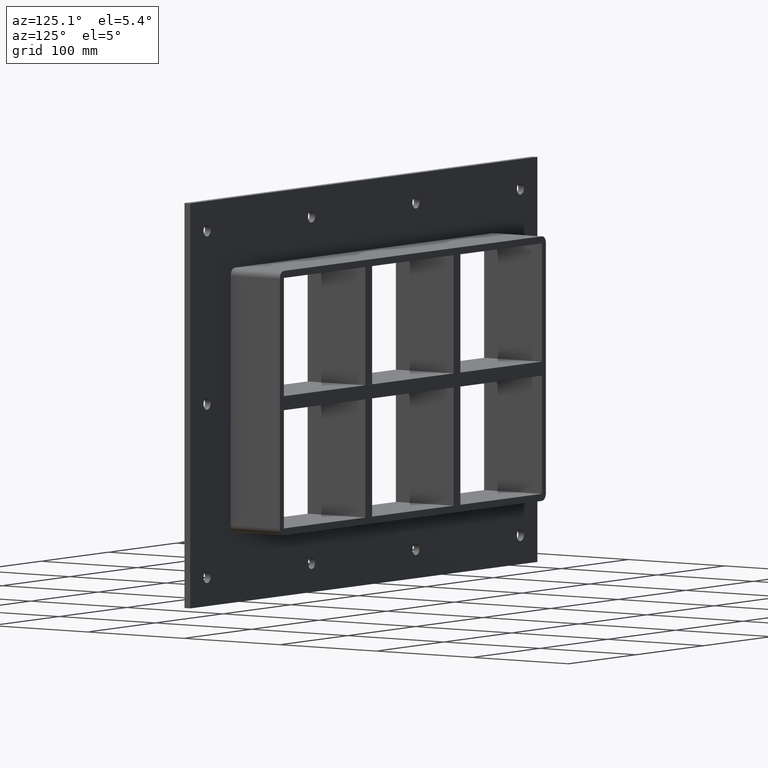
[diagram: clean part render]
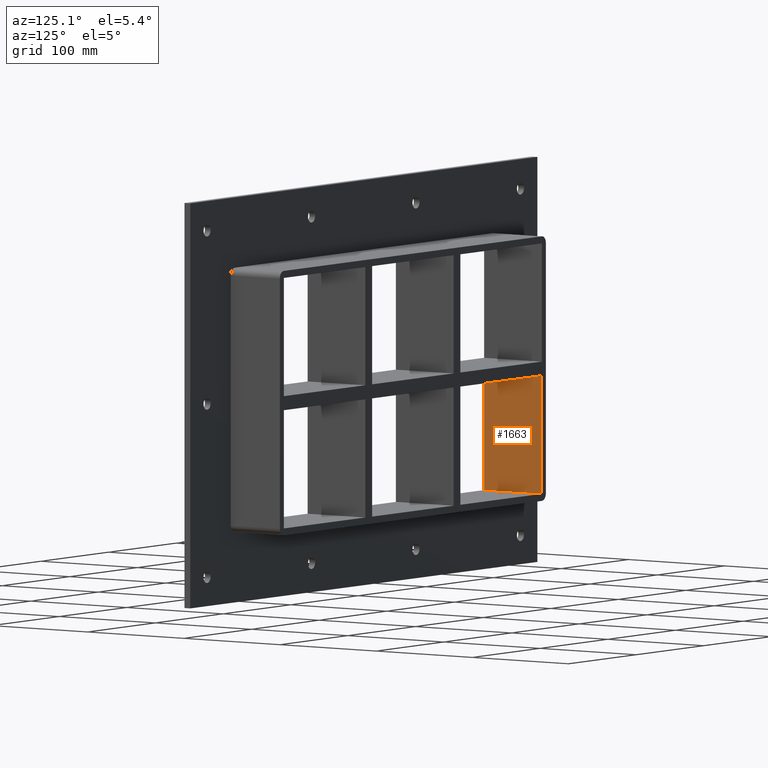
[diagram: same view with one face highlighted and labeled with its STEP entity id]
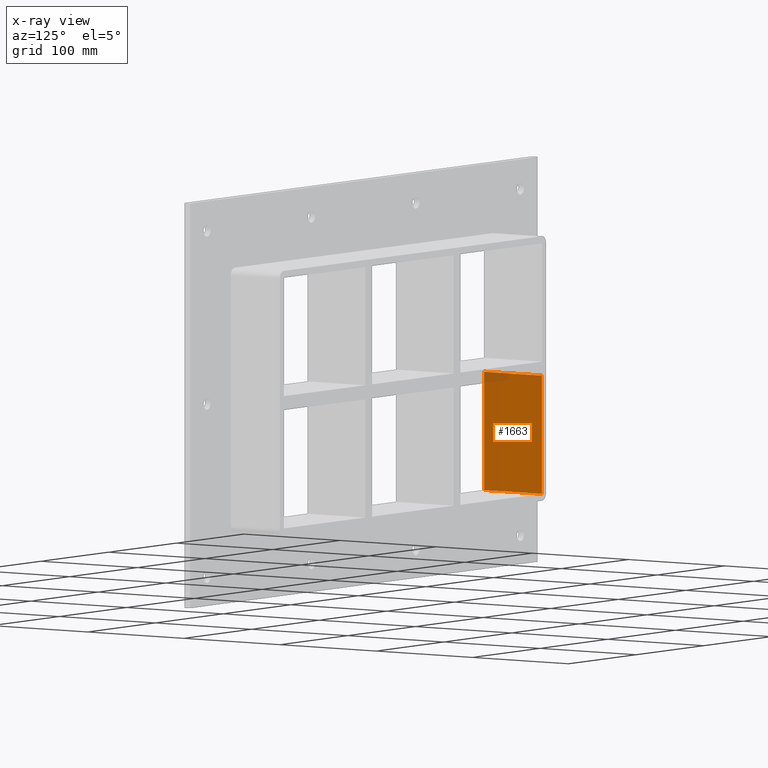
[diagram: x-ray of the same camera — body ghosted, the highlighted face saturated]
A machine part, auxiliary view. The second image highlights one B-rep face of the part: STEP entity #1663.
The next image is the same camera in x-ray: the body ghosted, the highlighted face saturated — about 3% of this face is hidden behind the body in this view.
In plain terms, the highlighted planar face has unit normal (-1, 0, 0).
Its self-contained STEP definition (entity closure, byte-faithful):
#733=CARTESIAN_POINT('',(-190.75000000000048,-3.0,-6.000000000010175));
#734=VERTEX_POINT('',#733);
#749=CARTESIAN_POINT('',(-190.75000000000003,-3.0,-107.0));
#750=VERTEX_POINT('',#749);
#757=CARTESIAN_POINT('',(-190.75000000000003,-3.0,-107.0));
#758=DIRECTION('',(0.0,0.0,1.0));
#759=VECTOR('',#758,100.99999999998983);
#760=LINE('',#757,#759);
#761=EDGE_CURVE('',#750,#734,#760,.T.);
#934=CARTESIAN_POINT('',(-190.75000000000048,57.0,-6.000000000010175));
#935=VERTEX_POINT('',#934);
#936=CARTESIAN_POINT('',(-190.75000000000003,57.000000000000007,-6.000000000010175));
#937=DIRECTION('',(0.0,-1.0,0.0));
#938=VECTOR('',#937,60.000000000000007);
#939=LINE('',#936,#938);
#940=EDGE_CURVE('',#935,#734,#939,.T.);
#1173=CARTESIAN_POINT('',(-190.75000000000003,57.0,-107.0));
#1174=VERTEX_POINT('',#1173);
#1175=CARTESIAN_POINT('',(-190.75000000000003,57.0,-6.000000000010175));
#1176=DIRECTION('',(0.0,0.0,-1.0));
#1177=VECTOR('',#1176,100.99999999998983);
#1178=LINE('',#1175,#1177);
#1179=EDGE_CURVE('',#935,#1174,#1178,.T.);
#1282=CARTESIAN_POINT('',(-190.75000000000003,-3.0,-107.0));
#1283=DIRECTION('',(0.0,1.0,0.0));
#1284=VECTOR('',#1283,60.0);
#1285=LINE('',#1282,#1284);
#1286=EDGE_CURVE('',#750,#1174,#1285,.T.);
#1652=CARTESIAN_POINT('',(-190.75000000000003,0.0,-107.0));
#1653=DIRECTION('',(-1.0,0.0,0.0));
#1654=DIRECTION('',(0.0,0.0,1.0));
#1655=AXIS2_PLACEMENT_3D('',#1652,#1653,#1654);
#1656=PLANE('',#1655);
#1657=ORIENTED_EDGE('',*,*,#940,.T.);
#1658=ORIENTED_EDGE('',*,*,#761,.F.);
#1659=ORIENTED_EDGE('',*,*,#1286,.T.);
#1660=ORIENTED_EDGE('',*,*,#1179,.F.);
#1661=EDGE_LOOP('',(#1657,#1658,#1659,#1660));
#1662=FACE_OUTER_BOUND('',#1661,.T.);
#1663=ADVANCED_FACE('',(#1662),#1656,.F.);